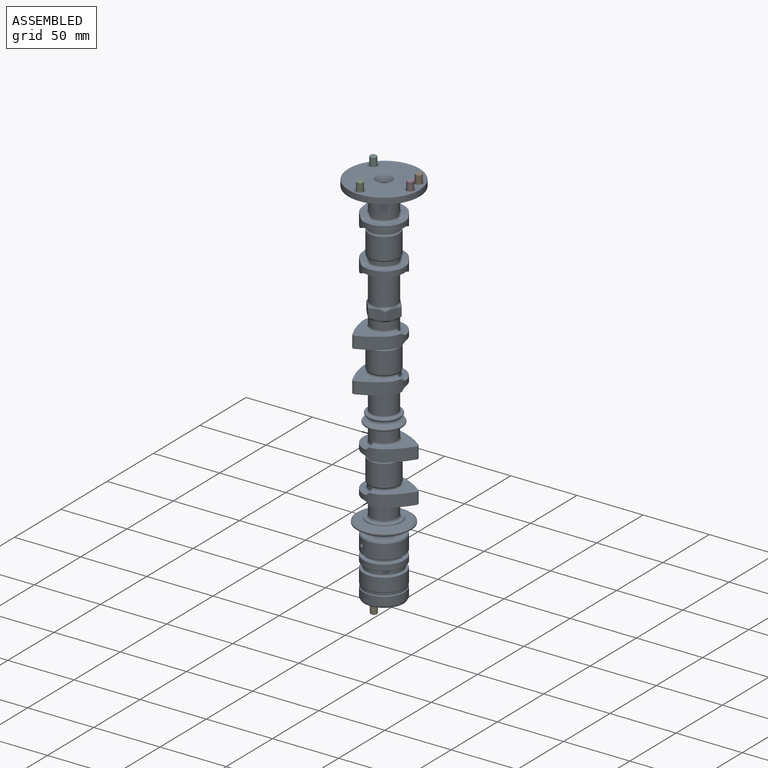
[diagram: assembled view]
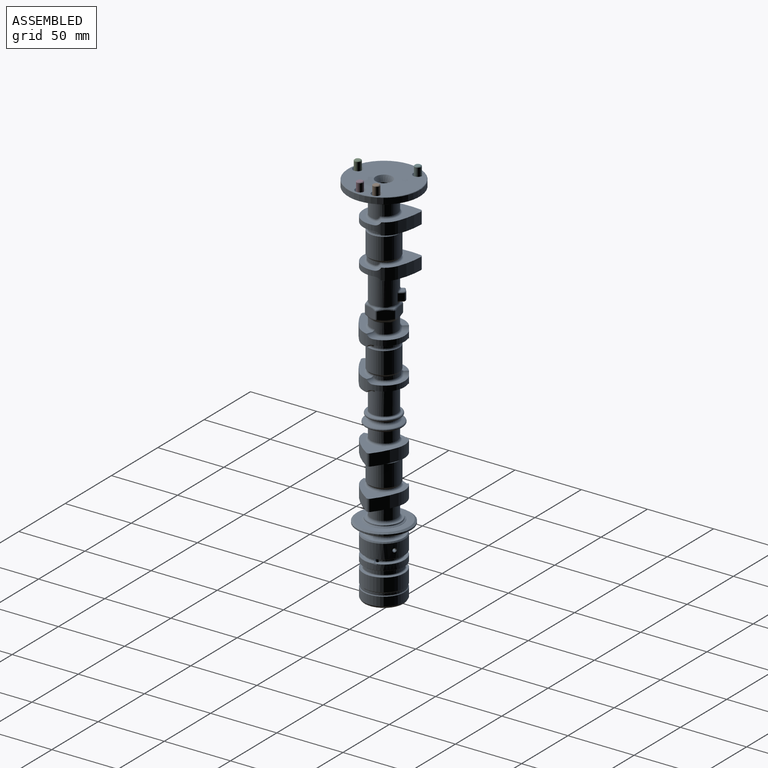
[diagram: assembled view, second angle]
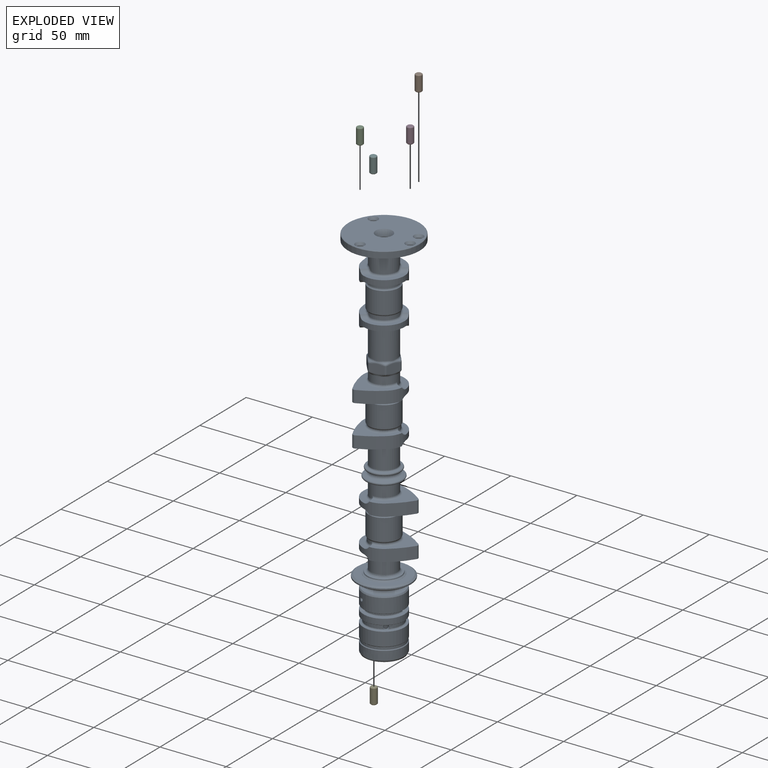
[diagram: exploded view]
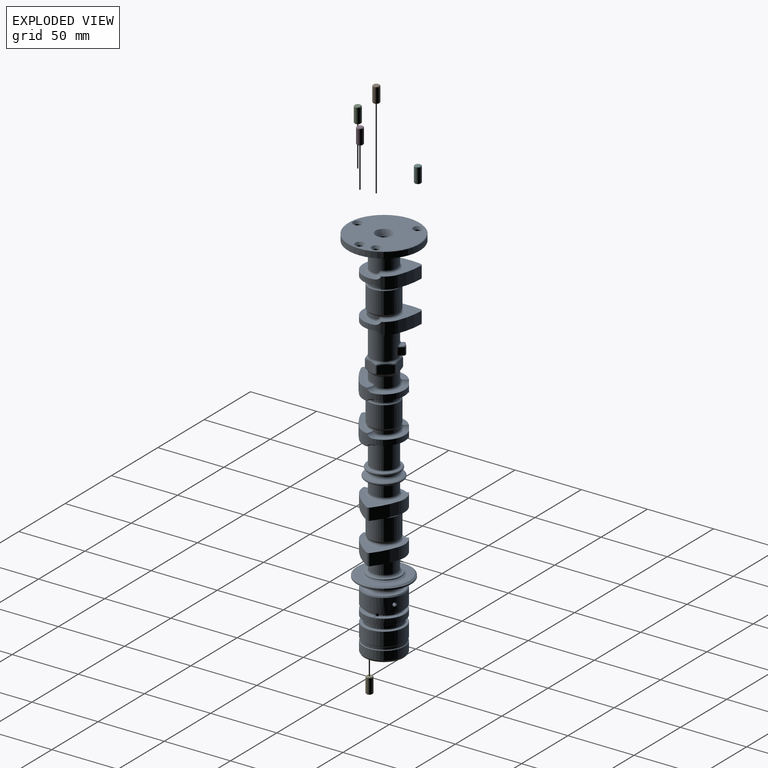
[diagram: exploded view, second angle]
ASSEMBLY  parts=6 mates=5
PART A: 391 faces, bbox 60.9x60.9x286.1 mm
  f0: cylinder r=15.5mm len=31mm, axis (0,0,-1), area 1036.7mm2, adj f18,f19,f43,f375,f378,f389,f390
  f1: cylinder r=4mm len=221.2mm, axis (0,0,-1), area 5553mm2, adj f356,f357,f387,f388
  f2: cylinder r=13.5mm len=23.38mm, axis (0,0,-1), area 103.1mm2, adj f4,f5,f384,f385
  f3: cylinder r=13.5mm len=22.71mm, axis (0,0,-1), area 98.2mm2, adj f4,f5,f384,f385
  f4: torus R=14.3mm, axis (0,0,1), area 105.5mm2, adj f2,f3,f30,f384,f385
  f5: torus R=14.3mm, axis (0,0,1), area 105.5mm2, adj f2,f3,f31,f384,f385
  f6: cylinder r=2mm len=26.05mm, axis (0,0,-1), area 311.4mm2, adj f379,f382,f384
  f7: cylinder r=15.5mm len=31mm, axis (0,0,-1), area 418.8mm2, adj f20,f21,f46,f374,f377
  f8: plane 24.2x17.84mm, normal (0,0,1), area 60.8mm2, adj f15,f20,f373,f376
  f9: plane 29.73x26.04mm, normal (0,0,1), area 92.4mm2, adj f14,f21,f373,f376
  f10: cylinder r=12.7mm len=24.39mm, axis (0,0,-1), area 61.5mm2, adj f14,f17,f373,f376
  f11: cylinder r=12.7mm len=19.43mm, axis (0,0,-1), area 39.7mm2, adj f15,f16,f373,f376
  f12: plane 24.2x17.84mm, normal (0,0,-1), area 60.8mm2, adj f16,f18,f373,f376
  f13: plane 29.73x26.04mm, normal (0,0,-1), area 92.5mm2, adj f17,f19,f373,f376
  f14: torus R=13.5mm, axis (0,0,1), area 57.2mm2, adj f9,f10,f373,f376
  f15: torus R=13.5mm, axis (0,0,1), area 37.3mm2, adj f8,f11,f373,f376
  f16: torus R=13.5mm, axis (0,0,1), area 37.3mm2, adj f11,f12,f373,f376
  f17: torus R=13.5mm, axis (0,0,1), area 57.2mm2, adj f10,f13,f373,f376
  f18: cone r=15.5mm half-angle=45deg, axis (0,0,1), area 10.3mm2, adj f0,f12,f375,f378
  f19: cone r=15.5mm half-angle=45deg, axis (0,0,1), area 15.6mm2, adj f0,f13,f375,f378
  f20: cone r=15.3mm half-angle=45deg, axis (0,0,-1), area 10.3mm2, adj f7,f8,f374,f377
  f21: cone r=15.3mm half-angle=45deg, axis (0,0,-1), area 15.6mm2, adj f7,f9,f374,f377
  f22: cylinder r=2mm len=34.45mm, axis (0,0,-1), area 417mm2, adj f350,f352,f376
  f23: cylinder r=2mm len=34.45mm, axis (0,0,-1), area 420.2mm2, adj f351,f353,f373
  f24: plane 33.08x31mm, normal (0,0,1), area 274.6mm2, adj f53,f54,f55,f56,f279,f280,f282
  f25: cylinder r=15.5mm len=31mm, axis (0,0,-1), area 607.3mm2, adj f26,f49,f50,f51
  f26: cone r=15.5mm half-angle=30deg, axis (0,0,1), area 142.7mm2, adj f25,f27,f51
  f27: plane 29.5x29.5mm, normal (0,0,-1), area 458.8mm2, adj f26,f349,f352,f353,f354,f382,f383
  f28: cylinder r=15mm len=30mm, axis (0,0,-1), area 158.4mm2, adj f44,f45,f386
  f29: cylinder r=15.5mm len=31mm, axis (0,0,-1), area 989.3mm2, adj f47,f48
  f30: plane 30.6x30.6mm, normal (0,0,1), area 93mm2, adj f4,f48
  f31: plane 30.6x30.6mm, normal (0,0,-1), area 93mm2, adj f5,f46
  f32: plane 29.84x29.84mm, normal (0,0,1), area 126.8mm2, adj f43,f60
  f33: cylinder r=11.5mm len=23mm, axis (0,0,-1), area 14.3mm2, adj f60,f61
  f34: cylinder r=12.5mm len=25mm, axis (0,0,-1), area 36.9mm2, adj f61,f63
  f35: plane 27.08x27.08mm, normal (0,0,-1), area 3.4mm2, adj f63,f65
  f36: cylinder r=20.5mm len=41mm, axis (0,0,-1), area 128.8mm2, adj f67,f68
  f37: plane 38.2x38.2mm, normal (0,0,1), area 530.5mm2, adj f64,f68
  f38: plane 38.2x38.2mm, normal (0,0,-1), area 530.5mm2, adj f65,f67
  f39: plane 27.08x27.08mm, normal (0,0,1), area 3.4mm2, adj f62,f64
  f40: cylinder r=12.5mm len=25mm, axis (0,0,-1), area 15.7mm2, adj f41,f62
  f41: plane 25x25mm, normal (0,0,1), area 38.5mm2, adj f40,f66
  f42: cylinder r=10mm len=20mm, axis (0,0,-1), area 662.3mm2, adj f66,f275,f276,f277,f278
  f43: cone r=14.92mm half-angle=30deg, axis (0,0,-1), area 110.9mm2, adj f0,f32
  f44: torus R=15.4mm, axis (0,0,1), area 53.2mm2, adj f28,f49,f386
  f45: torus R=15.4mm, axis (0,0,1), area 53.2mm2, adj f28,f47,f386
  f46: cone r=15.5mm half-angle=45deg, axis (0,0,1), area 27.4mm2, adj f7,f31
  f47: cone r=15.5mm half-angle=40.2deg, axis (0,0,1), area 25mm2, adj f29,f45
  f48: cone r=15.3mm half-angle=45deg, axis (0,0,-1), area 27.4mm2, adj f29,f30
  f49: cone r=15.33mm half-angle=40.2deg, axis (0,0,-1), area 25mm2, adj f25,f44
  f50: plane 10.89x0.99mm, normal (0,0,-1), area 2.2mm2, adj f25,f51
  f51: cylinder r=21.9mm len=10.89mm, axis (0,0,-1), area 40.7mm2, adj f25,f26,f50
  f52: plane 33.08x31mm, normal (0,0,-1), area 309.5mm2, adj f53,f54,f55,f56,f273,f274,f277
  f53: cylinder r=58.4mm len=17.19mm, axis (0,0,-1), area 176.6mm2, adj f24,f52,f54,f56
  f54: cylinder r=15.5mm len=31mm, axis (0,0,-1), area 414.2mm2, adj f24,f52,f53,f55,f57,f59,f273,f274
  f55: cylinder r=58.4mm len=14.53mm, axis (0,0,-1), area 176.6mm2, adj f24,f52,f54,f56
  f56: cylinder r=2.15mm len=9mm, axis (0,0,-1), area 29.4mm2, adj f24,f52,f53,f55
  f57: plane 23.35x10.63mm, normal (0,0,-1), area 92.7mm2, adj f54,f273,f274,f276
  f58: cylinder r=10.75mm len=18.26mm, axis (0,0,1), area 48.8mm2, adj f74,f281,f283,f284
  f59: plane 23.35x10.63mm, normal (0,0,1), area 78.6mm2, adj f54,f279,f280,f283
  f60: torus R=13.5mm, axis (0,0,1), area 241.3mm2, adj f32,f33
  f61: torus R=13.5mm, axis (0,0,1), area 155.9mm2, adj f33,f34
  f62: torus R=13.5mm, axis (0,0,1), area 127mm2, adj f39,f40
  f63: torus R=13.5mm, axis (0,0,1), area 127mm2, adj f34,f35
  f64: torus R=14mm, axis (0,0,1), area 50mm2, adj f37,f39
  f65: torus R=14mm, axis (0,0,1), area 50mm2, adj f35,f38
  f66: torus R=12mm, axis (0,0,1), area 211.7mm2, adj f41,f42
  f67: cone r=20.5mm half-angle=54.5deg, axis (0,0,1), area 214mm2, adj f36,f38
  f68: cone r=19.1mm half-angle=54.5deg, axis (0,0,-1), area 214mm2, adj f36,f37
  f69: cylinder r=11.5mm len=23mm, axis (0,0,-1), area 1192.2mm2, adj f71,f73
  f70: cylinder r=10.75mm len=18.26mm, axis (0,0,-1), area 48.8mm2, adj f72,f287,f288,f290
  f71: cone r=10.75mm half-angle=45deg, axis (0,0,-1), area 31.3mm2, adj f69,f72
  f72: torus R=12.25mm, axis (0,0,1), area 78mm2, adj f70,f71,f287,f289,f290
  f73: cone r=10.75mm half-angle=45deg, axis (0,0,1), area 31.3mm2, adj f69,f74
  f74: torus R=12.25mm, axis (0,0,-1), area 78mm2, adj f58,f73,f281,f282,f284
  f75: plane 33.08x31mm, normal (0,0,-1), area 274.6mm2, adj f76,f77,f78,f79,f285,f286,f289
  f76: cylinder r=58.4mm len=17.19mm, axis (0,0,-1), area 176.6mm2, adj f75,f77,f79,f80
  f77: cylinder r=15.5mm len=31mm, axis (0,0,-1), area 414.2mm2, adj f75,f76,f78,f80,f81,f83,f285,f286
  f78: cylinder r=58.4mm len=14.53mm, axis (0,0,-1), area 176.6mm2, adj f75,f77,f79,f80
  f79: cylinder r=2.15mm len=9mm, axis (0,0,-1), area 29.4mm2, adj f75,f76,f78,f80
  f80: plane 33.08x31mm, normal (0,0,1), area 309.5mm2, adj f76,f77,f78,f79,f291,f292,f294
  f81: plane 23.35x10.63mm, normal (0,0,-1), area 78.6mm2, adj f77,f285,f286,f288
  f82: cylinder r=10mm len=20mm, axis (0,0,1), area 530.3mm2, adj f92,f293,f294,f295,f296
  f83: plane 23.35x10.63mm, normal (0,0,1), area 92.7mm2, adj f77,f291,f292,f295
  f84: cylinder r=14mm len=28mm, axis (0,0,-1), area 1.4mm2, adj f93,f94
  f85: plane 26.14x26.14mm, normal (0,0,-1), area 84.3mm2, adj f92,f93
  f86: cone r=14mm half-angle=70.2deg, axis (0,0,-1), area 170.1mm2, adj f91,f94
  f87: cylinder r=10mm len=20mm, axis (0,0,-1), area 24.8mm2, adj f91,f97
  f88: plane 23x23mm, normal (0,0,1), area 35.3mm2, adj f95,f96
  f89: plane 23x23mm, normal (0,0,-1), area 35.3mm2, adj f96,f97
  f90: cylinder r=10mm len=20mm, axis (0,0,-1), area 1020.4mm2, adj f95,f299,f300,f301,f302
  f91: torus R=12mm, axis (0,0,1), area 161.1mm2, adj f86,f87
  f92: torus R=12mm, axis (0,0,1), area 211.7mm2, adj f82,f85
  f93: torus R=13.07mm, axis (0,0,1), area 125.4mm2, adj f84,f85
  f94: torus R=13.07mm, axis (0,0,-1), area 98.7mm2, adj f84,f86
  f95: torus R=11mm, axis (0,0,1), area 102.3mm2, adj f88,f90
  f96: torus R=11.5mm, axis (0,0,1), area 239.6mm2, adj f88,f89
  f97: torus R=11mm, axis (0,0,1), area 102.3mm2, adj f87,f89
  f98: plane 34.04x30.81mm, normal (0,0,-1), area 309.5mm2, adj f100,f101,f102,f103,f297,f298,f301
  f99: plane 34.04x30.81mm, normal (0,0,1), area 274.6mm2, adj f100,f101,f102,f103,f303,f304,f306
  f100: cylinder r=58.4mm len=16.61mm, axis (0,0,-1), area 176.6mm2, adj f98,f99,f101,f103
  f101: cylinder r=15.5mm len=31mm, axis (0,0,-1), area 414.2mm2, adj f98,f99,f100,f102,f104,f106,f297,f298
  f102: cylinder r=58.4mm len=18.56mm, axis (0,0,-1), area 176.6mm2, adj f98,f99,f101,f103
  f103: cylinder r=2.15mm len=9mm, axis (0,0,-1), area 29.4mm2, adj f98,f99,f100,f102
  f104: plane 21.57x13.31mm, normal (0,0,-1), area 92.7mm2, adj f101,f297,f298,f300
  f105: cylinder r=10.75mm len=16.94mm, axis (0,0,1), area 48.8mm2, adj f112,f305,f307,f308
  f106: plane 21.57x13.31mm, normal (0,0,1), area 78.6mm2, adj f101,f303,f304,f307
  f107: cylinder r=11.5mm len=23mm, axis (0,0,-1), area 1192.2mm2, adj f109,f111
  f108: cylinder r=10.75mm len=16.94mm, axis (0,0,-1), area 48.8mm2, adj f110,f317,f318,f320
  f109: cone r=10.75mm half-angle=45deg, axis (0,0,-1), area 31.3mm2, adj f107,f110
  f110: torus R=12.25mm, axis (0,0,1), area 78mm2, adj f108,f109,f317,f319,f320
  f111: cone r=10.75mm half-angle=45deg, axis (0,0,1), area 31.3mm2, adj f107,f112
  f112: torus R=12.25mm, axis (0,0,-1), area 78mm2, adj f105,f111,f305,f306,f308
  f113: plane 34.04x30.81mm, normal (0,0,-1), area 274.6mm2, adj f115,f116,f117,f118,f309,f310,f319
  f114: plane 34.04x30.81mm, normal (0,0,1), area 309.5mm2, adj f115,f116,f117,f118,f311,f312,f314
  f115: cylinder r=58.4mm len=16.61mm, axis (0,0,-1), area 176.6mm2, adj f113,f114,f116,f118
  f116: cylinder r=15.5mm len=31mm, axis (0,0,-1), area 414.2mm2, adj f113,f114,f115,f117,f119,f121,f309,f310
  f117: cylinder r=58.4mm len=18.56mm, axis (0,0,-1), area 176.6mm2, adj f113,f114,f116,f118
  f118: cylinder r=2.15mm len=9mm, axis (0,0,-1), area 29.4mm2, adj f113,f114,f115,f117
  f119: plane 21.57x13.31mm, normal (0,0,-1), area 78.6mm2, adj f116,f309,f310,f318
  f120: cylinder r=10mm len=20mm, axis (0,0,1), area 373.2mm2, adj f155,f156,f157,f158,f159,f160,f161,f162
  f121: plane 21.57x13.31mm, normal (0,0,1), area 92.7mm2, adj f116,f311,f312,f315
  f122: plane 7.97x6.92mm, normal (0.77,0.64,0), area 66.5mm2, adj f152,f154,f180,f182,f184,f204,f206,f208
  f123: plane 9.76x6.92mm, normal (0.94,-0.34,0), area 66.6mm2, adj f149,f154,f172,f174,f176,f196,f198,f200
  f124: plane 10.24x6.92mm, normal (0.17,-0.99,0), area 66.6mm2, adj f149,f150,f167,f168,f169,f191,f192,f193
  f125: plane 7.97x6.92mm, normal (-0.77,-0.64,0), area 66.5mm2, adj f150,f151,f173,f175,f177,f197,f199,f201
  f126: plane 9.76x6.92mm, normal (-0.94,0.34,0), area 66.5mm2, adj f151,f153,f181,f183,f185,f205,f207,f209
  f127: plane 10.24x6.92mm, normal (-0.17,0.99,0), area 66.5mm2, adj f152,f153,f188,f189,f190,f212,f213,f214
  f128: cylinder r=10mm len=21.3mm, axis (0,0,-1), area 1107.2mm2, adj f137,f138,f140,f141,f142,f143,f144,f145
  f129: plane 1.46x1.09mm, normal (0,0,1), area 0.3mm2, adj f230,f239,f240
  f130: plane 5.57x3.95mm, normal (0,0,-1), area 9.2mm2, adj f132,f224,f225,f226,f227
  f131: plane 5x3.07mm, normal (-0.64,0.77,0), area 20mm2, adj f132,f216,f219,f224
  f132: plane 7.09x3.07mm, normal (-0.77,-0.64,0), area 26.2mm2, adj f130,f131,f135,f215,f219,f221,f224,f227
  f133: plane 6.44x3.24mm, normal (-0.64,0.77,0), area 22.4mm2, adj f215,f218,f234,f235,f240,f241
  f134: plane 5x2.31mm, normal (0.77,0.64,0), area 15.1mm2, adj f216,f217,f222,f226
  f135: plane 5.57x3.95mm, normal (0,0,1), area 9.2mm2, adj f132,f219,f220,f221,f222
  f136: plane 1.46x1.09mm, normal (0,0,-1), area 0.3mm2, adj f229,f233,f234
  f137: bspline ~9.52x4.7mm, area 8.8mm2, adj f128,f138,f139,f207,f230
  f138: torus R=11.5mm, axis (0,0,-1), area 3.5mm2, adj f128,f137,f140,f201,f205
  f139: torus R=11.5mm, axis (0,0,-1), area 3.5mm2, adj f137,f141,f209,f213,f227,f230
  f140: bspline ~8.26x7.24mm, area 8.8mm2, adj f128,f138,f142,f199
  f141: bspline ~9.99x3.11mm, area 9mm2, adj f128,f139,f143,f214,f227
  f142: torus R=11.5mm, axis (0,0,-1), area 3.5mm2, adj f128,f140,f144,f193,f197
  f143: torus R=11.5mm, axis (0,0,-1), area 3.5mm2, adj f128,f141,f145,f208,f212
  f144: bspline ~9.99x3.11mm, area 8.8mm2, adj f128,f142,f146,f191
  f145: bspline ~8.26x7.24mm, area 8.8mm2, adj f128,f143,f147,f206
  f146: torus R=11.5mm, axis (0,0,-1), area 3.5mm2, adj f128,f144,f148,f192,f196
  f147: torus R=11.5mm, axis (0,0,-1), area 3.5mm2, adj f128,f145,f148,f200,f204
  f148: bspline ~9.52x4.7mm, area 8.8mm2, adj f128,f146,f147,f198
  f149: cylinder r=1.5mm len=5.42mm, axis (0,0,-1), area 8.5mm2, adj f123,f124,f170,f194
  f150: cylinder r=1.5mm len=5.42mm, axis (0,0,1), area 8.5mm2, adj f124,f125,f171,f195
  f151: cylinder r=1.5mm len=5.42mm, axis (0,0,-1), area 8.5mm2, adj f125,f126,f179,f203
  f152: cylinder r=1.5mm len=5.42mm, axis (0,0,1), area 8.5mm2, adj f122,f127,f186,f210
  f153: cylinder r=1.5mm len=5.42mm, axis (0,0,-1), area 8.5mm2, adj f126,f127,f187,f211
  f154: cylinder r=1.5mm len=5.42mm, axis (0,0,-1), area 8.5mm2, adj f122,f123,f178,f202
  f155: bspline ~9.52x4.67mm, area 8.8mm2, adj f120,f156,f157,f174
  f156: torus R=11.5mm, axis (0,0,-1), area 3.5mm2, adj f120,f155,f158,f176,f180
  f157: torus R=11.5mm, axis (0,0,-1), area 3.5mm2, adj f120,f155,f159,f168,f172
  f158: bspline ~8.24x7.26mm, area 8.8mm2, adj f120,f156,f160,f182
  f159: bspline ~9.99x3.15mm, area 8.8mm2, adj f120,f157,f161,f167
  f160: torus R=11.5mm, axis (0,0,-1), area 3.5mm2, adj f120,f158,f162,f184,f188
  f161: torus R=11.5mm, axis (0,0,-1), area 3.5mm2, adj f120,f159,f163,f169,f173
  f162: bspline ~9.99x3.15mm, area 8.8mm2, adj f120,f160,f164,f190
  f163: bspline ~8.24x7.26mm, area 8.8mm2, adj f120,f161,f165,f175
  f164: torus R=11.5mm, axis (0,0,-1), area 3.5mm2, adj f120,f162,f166,f185,f189
  f165: torus R=11.5mm, axis (0,0,-1), area 3.5mm2, adj f120,f163,f166,f177,f181
  f166: bspline ~9.52x4.67mm, area 8.8mm2, adj f120,f164,f165,f183
  f167: bspline ~8.98x2.3mm, area 9.4mm2, adj f124,f159,f168,f169
  f168: bspline ~3.03x1.8mm, area 2mm2, adj f124,f157,f167,f170
  f169: bspline ~3.47x1.83mm, area 2mm2, adj f124,f161,f167,f171
  f170: sphere r=1.5mm, area 1.7mm2, adj f149,f168,f172
  f171: sphere r=1.5mm, area 1.6mm2, adj f150,f169,f173
  f172: bspline ~3.27x2.39mm, area 2mm2, adj f123,f157,f170,f174
  f173: bspline ~2.79x2.36mm, area 2mm2, adj f125,f161,f171,f175
  f174: bspline ~8.9x3.94mm, area 9.4mm2, adj f123,f155,f172,f176
  f175: bspline ~7.57x6.52mm, area 9.4mm2, adj f125,f163,f173,f177
  f176: bspline ~3.54x1.83mm, area 2mm2, adj f123,f156,f174,f178
  f177: bspline ~2.7x1.86mm, area 2mm2, adj f125,f165,f175,f179
  f178: sphere r=1.5mm, area 1.6mm2, adj f154,f176,f180
  f179: sphere r=1.5mm, area 1.7mm2, adj f151,f177,f181
  f180: bspline ~3.5x2.43mm, area 2mm2, adj f122,f156,f178,f182
  f181: bspline ~3.21x1.78mm, area 2mm2, adj f126,f165,f179,f183
  f182: bspline ~7.57x6.52mm, area 9.4mm2, adj f122,f158,f180,f184
  f183: bspline ~8.9x3.94mm, area 9.4mm2, adj f126,f166,f181,f185
  f184: bspline ~3.04x2.55mm, area 2mm2, adj f122,f160,f182,f186
  f185: bspline ~2.89x2.26mm, area 2mm2, adj f126,f164,f183,f187
  f186: sphere r=1.5mm, area 1.7mm2, adj f152,f184,f188
  f187: sphere r=1.5mm, area 1.7mm2, adj f153,f185,f189
  f188: bspline ~3.68x1.86mm, area 2mm2, adj f127,f160,f186,f190
  f189: bspline ~2.92x1.78mm, area 2mm2, adj f127,f164,f187,f190
  f190: bspline ~9.18x2.39mm, area 9.4mm2, adj f127,f162,f188,f189
  f191: bspline ~9.14x2.37mm, area 9.4mm2, adj f124,f144,f192,f193
  f192: bspline ~3.03x1.8mm, area 2mm2, adj f124,f146,f191,f194
  f193: bspline ~3.47x1.83mm, area 2mm2, adj f124,f142,f191,f195
  f194: sphere r=1.5mm, area 1.7mm2, adj f149,f192,f196
  f195: sphere r=1.5mm, area 1.7mm2, adj f150,f193,f197
  f196: bspline ~3.27x2.39mm, area 2mm2, adj f123,f146,f194,f198
  f197: bspline ~2.79x2.36mm, area 2mm2, adj f125,f142,f195,f199
  f198: bspline ~8.91x3.86mm, area 9.4mm2, adj f123,f148,f196,f200
  f199: bspline ~7.54x6.48mm, area 9.4mm2, adj f125,f140,f197,f201
  f200: bspline ~3.54x1.83mm, area 2mm2, adj f123,f147,f198,f202
  f201: bspline ~3.52x2.44mm, area 2mm2, adj f125,f138,f199,f203
  f202: sphere r=1.5mm, area 1.7mm2, adj f154,f200,f204
  f203: sphere r=1.5mm, area 1.6mm2, adj f151,f201,f205
  f204: bspline ~3.5x2.43mm, area 2mm2, adj f122,f147,f202,f206
  f205: bspline ~3.21x1.78mm, area 2mm2, adj f126,f138,f203,f207
  f206: bspline ~7.51x6.46mm, area 9.4mm2, adj f122,f145,f204,f208
  f207: bspline ~8.91x3.86mm, area 9.4mm2, adj f126,f137,f205,f209
  f208: bspline ~3.04x2.55mm, area 2mm2, adj f122,f143,f206,f210
  f209: bspline ~2.89x2.26mm, area 2mm2, adj f126,f139,f207,f211
  f210: sphere r=1.5mm, area 1.6mm2, adj f152,f208,f212
  f211: sphere r=1.5mm, area 1.7mm2, adj f153,f209,f213
  f212: bspline ~2.82x1.73mm, area 2mm2, adj f127,f143,f210,f214
  f213: bspline ~2.92x1.78mm, area 2mm2, adj f127,f139,f211,f214
  f214: bspline ~9.14x2.37mm, area 9.4mm2, adj f127,f141,f212,f213
  f215: cylinder r=2mm len=5.16mm, axis (0,0,-1), area 15.8mm2, adj f132,f133,f232,f233,f238,f239
  f216: cylinder r=2mm len=5mm, axis (0,0,-1), area 15.7mm2, adj f131,f134,f220,f225
  f217: cylinder r=1mm len=5mm, axis (0,0,-1), area 4.4mm2, adj f128,f134,f223,f228
  f218: cylinder r=1mm len=9mm, axis (0,0,-1), area 5.9mm2, adj f128,f133,f236,f242
  f219: cylinder r=1mm len=3.71mm, axis (0.77,0.64,0), area 6.3mm2, adj f131,f132,f135,f220
  f220: torus R=1mm, axis (0,0,1), area 4mm2, adj f135,f216,f219,f222
  f221: torus R=11mm, axis (0,0,1), area 8.1mm2, adj f128,f132,f135,f223,f231
  f222: cylinder r=1mm len=2.95mm, axis (0.64,-0.77,0), area 3.7mm2, adj f134,f135,f220,f223
  f223: bspline ~2.47x2.38mm, area 3mm2, adj f128,f217,f221,f222
  f224: cylinder r=1mm len=3.71mm, axis (-0.77,-0.64,0), area 6.3mm2, adj f130,f131,f132,f225
  f225: torus R=1mm, axis (0,0,1), area 4mm2, adj f130,f216,f224,f226
  f226: cylinder r=1mm len=2.95mm, axis (-0.64,0.77,0), area 3.7mm2, adj f130,f134,f225,f228
  f227: torus R=11mm, axis (0,0,1), area 8.1mm2, adj f130,f132,f139,f141,f228,f237
  f228: bspline ~2.7x2.36mm, area 3mm2, adj f128,f217,f226,f227
  f229: torus R=9mm, axis (0,0,1), area 7.3mm2, adj f128,f136,f231,f232,f235,f236
  f230: torus R=9mm, axis (0,0,1), area 8mm2, adj f129,f137,f139,f237,f238,f241,f242
  f231: bspline ~2.21x2.07mm, area 2.1mm2, adj f132,f221,f229,f232
  f232: bspline ~1.88x1.12mm, area 1.3mm2, adj f215,f229,f231,f233
  f233: torus R=1mm, axis (0,0,1), area 2.5mm2, adj f136,f215,f232,f234
  f234: cylinder r=1mm len=1.38mm, axis (0.77,0.64,0), area 1.5mm2, adj f133,f136,f233,f235
  f235: bspline ~3.4x3.08mm, area 3.9mm2, adj f133,f229,f234,f236
  f236: bspline ~1.57x1.5mm, area 0.4mm2, adj f218,f229,f235
  f237: bspline ~2.21x2.07mm, area 2.1mm2, adj f132,f227,f230,f238
  f238: bspline ~1.56x1.12mm, area 1.3mm2, adj f215,f230,f237,f239
  f239: torus R=1mm, axis (0,0,1), area 2.5mm2, adj f129,f215,f238,f240
  f240: cylinder r=1mm len=1.38mm, axis (-0.77,-0.64,0), area 1.5mm2, adj f129,f133,f239,f241
  f241: bspline ~3.55x3.26mm, area 3.9mm2, adj f133,f230,f240,f242
  f242: bspline ~1.57x1.5mm, area 0.4mm2, adj f218,f230,f241
  f243: plane 30.55x29.95mm, normal (0,0,-1), area 293.3mm2, adj f245,f246,f247,f248,f321,f322,f331
  f244: plane 30.55x29.95mm, normal (0,0,1), area 260.8mm2, adj f245,f246,f247,f248,f323,f324,f326
  f245: cylinder r=58.4mm len=19.52mm, axis (0,0,-1), area 176.6mm2, adj f243,f244,f246,f248
  f246: cylinder r=15.5mm len=30.72mm, axis (0,0,-1), area 389.3mm2, adj f243,f244,f245,f247,f249,f251,f321,f322
  f247: cylinder r=58.4mm len=19.11mm, axis (0,0,-1), area 176.6mm2, adj f243,f244,f246,f248
  f248: cylinder r=2.15mm len=9mm, axis (0,0,-1), area 29.4mm2, adj f243,f244,f245,f247
  f249: plane 21.28x18.64mm, normal (0,0,-1), area 107.5mm2, adj f246,f321,f322,f330
  f250: cylinder r=10.75mm len=16.28mm, axis (0,0,1), area 55.4mm2, adj f257,f325,f327,f328
  f251: plane 21.28x18.64mm, normal (0,0,1), area 91.4mm2, adj f246,f323,f324,f327
  f252: cylinder r=11.5mm len=23mm, axis (0,0,-1), area 1192.2mm2, adj f254,f256
  f253: cylinder r=10.75mm len=16.28mm, axis (0,0,-1), area 55.4mm2, adj f255,f341,f342,f344
  f254: cone r=10.75mm half-angle=45deg, axis (0,0,-1), area 31.3mm2, adj f252,f255
  f255: torus R=12.25mm, axis (0,0,1), area 78.2mm2, adj f253,f254,f341,f343,f344
  f256: cone r=10.75mm half-angle=45deg, axis (0,0,1), area 31.3mm2, adj f252,f257
  f257: torus R=12.25mm, axis (0,0,-1), area 78.2mm2, adj f250,f256,f325,f326,f328
  f258: plane 30.55x29.95mm, normal (0,0,-1), area 260.8mm2, adj f260,f261,f262,f263,f333,f334,f343
  f259: plane 30.55x29.95mm, normal (0,0,1), area 293.3mm2, adj f260,f261,f262,f263,f335,f336,f338
  f260: cylinder r=58.4mm len=19.52mm, axis (0,0,-1), area 176.6mm2, adj f258,f259,f261,f263
  f261: cylinder r=15.5mm len=30.72mm, axis (0,0,-1), area 389.3mm2, adj f258,f259,f260,f262,f264,f266,f333,f334
  f262: cylinder r=58.4mm len=19.11mm, axis (0,0,-1), area 176.6mm2, adj f258,f259,f261,f263
  f263: cylinder r=2.15mm len=9mm, axis (0,0,-1), area 29.4mm2, adj f258,f259,f260,f262
  f264: plane 21.28x18.64mm, normal (0,0,-1), area 91.4mm2, adj f261,f333,f334,f342
  f265: cylinder r=10mm len=20mm, axis (0,0,1), area 555.1mm2, adj f271,f337,f338,f339,f340
  f266: plane 21.28x18.64mm, normal (0,0,1), area 107.5mm2, adj f261,f335,f336,f339
  f267: plane 52x52mm, normal (0,0,-1), area 1027.3mm2, adj f268,f271,f362,f363,f364,f365
  f268: torus R=26mm, axis (0,0,1), area 169.8mm2, adj f267,f269
  f269: cylinder r=27mm len=54mm, axis (0,0,1), area 768.2mm2, adj f268,f272
  f270: plane 53.4x53.4mm, normal (0,0,1), area 1951.7mm2, adj f272,f366,f367,f368,f369,f372
  f271: torus R=18mm, axis (0,0,1), area 1019.1mm2, adj f265,f267
  f272: cone r=26.7mm half-angle=45deg, axis (0,0,-1), area 71.6mm2, adj f269,f270
  f273: cylinder r=5mm len=7mm, axis (0.17,-0.99,0), area 24.5mm2, adj f52,f54,f57,f275,f277
  f274: cylinder r=5mm len=6.5mm, axis (-0.64,0.77,0), area 21.9mm2, adj f52,f54,f57,f277,f278
  f275: bspline ~6.54x4.76mm, area 10.5mm2, adj f42,f273,f276,f277
  f276: torus R=11.5mm, axis (0,0,1), area 38.3mm2, adj f42,f57,f275,f278
  f277: torus R=11.5mm, axis (0,0,1), area 99mm2, adj f42,f52,f273,f274,f275,f278
  f278: bspline ~5x4.5mm, area 11mm2, adj f42,f274,f276,f277
  f279: cylinder r=5mm len=5.91mm, axis (0.64,-0.77,0), area 17.8mm2, adj f24,f54,f59,f282,f284
  f280: cylinder r=5mm len=6.06mm, axis (-0.17,0.99,0), area 20mm2, adj f24,f54,f59,f281,f282
  f281: bspline ~6.59x4.59mm, area 10.3mm2, adj f58,f74,f280,f282,f283
  f282: torus R=12.25mm, axis (0,0,1), area 102.9mm2, adj f24,f74,f279,f280,f281,f284
  f283: torus R=12.25mm, axis (0,0,1), area 43mm2, adj f58,f59,f281,f284
  f284: bspline ~5.51x4.88mm, area 10.7mm2, adj f58,f74,f279,f282,f283
  f285: cylinder r=5mm len=5.91mm, axis (-0.64,0.77,0), area 17.8mm2, adj f75,f77,f81,f289,f290
  f286: cylinder r=5mm len=6.06mm, axis (0.17,-0.99,0), area 20mm2, adj f75,f77,f81,f287,f289
  f287: bspline ~6.59x4.59mm, area 10.3mm2, adj f70,f72,f286,f288,f289
  f288: torus R=12.25mm, axis (0,0,1), area 43mm2, adj f70,f81,f287,f290
  f289: torus R=12.25mm, axis (0,0,1), area 102.9mm2, adj f72,f75,f285,f286,f287,f290
  f290: bspline ~5.51x4.88mm, area 10.7mm2, adj f70,f72,f285,f288,f289
  f291: cylinder r=5mm len=7mm, axis (-0.17,0.99,0), area 24.5mm2, adj f77,f80,f83,f293,f294
  f292: cylinder r=5mm len=6.5mm, axis (0.64,-0.77,0), area 21.9mm2, adj f77,f80,f83,f294,f296
  f293: bspline ~6.54x4.76mm, area 10.5mm2, adj f82,f291,f294,f295
  f294: torus R=11.5mm, axis (0,0,1), area 99mm2, adj f80,f82,f291,f292,f293,f296
  f295: torus R=11.5mm, axis (0,0,1), area 38.3mm2, adj f82,f83,f293,f296
  f296: bspline ~5x4.5mm, area 11mm2, adj f82,f292,f294,f295
  f297: cylinder r=5mm len=6.5mm, axis (-0.64,0.77,0), area 21.9mm2, adj f98,f101,f104,f299,f301
  f298: cylinder r=5mm len=7.46mm, axis (0.94,-0.34,0), area 24.5mm2, adj f98,f101,f104,f301,f302
  f299: bspline ~5.31x4.39mm, area 11mm2, adj f90,f297,f300,f301
  f300: torus R=11.5mm, axis (0,0,1), area 38.3mm2, adj f90,f104,f299,f302
  f301: torus R=11.5mm, axis (0,0,1), area 99mm2, adj f90,f98,f297,f298,f299,f302
  f302: bspline ~6.73x4.76mm, area 10.5mm2, adj f90,f298,f300,f301
  f303: cylinder r=5mm len=6.56mm, axis (-0.94,0.34,0), area 20mm2, adj f99,f101,f106,f306,f308
  f304: cylinder r=5mm len=5.91mm, axis (0.64,-0.77,0), area 17.8mm2, adj f99,f101,f106,f305,f306
  f305: bspline ~5.87x4.41mm, area 10.7mm2, adj f105,f112,f304,f306,f307
  f306: torus R=12.25mm, axis (0,0,1), area 102.9mm2, adj f99,f112,f303,f304,f305,f308
  f307: torus R=12.25mm, axis (0,0,1), area 43mm2, adj f105,f106,f305,f308
  f308: bspline ~6.74x4.59mm, area 10.3mm2, adj f105,f112,f303,f306,f307
  f309: cylinder r=5mm len=5.91mm, axis (-0.64,0.77,0), area 17.8mm2, adj f113,f116,f119,f317,f319
  f310: cylinder r=5mm len=6.56mm, axis (0.94,-0.34,0), area 20mm2, adj f113,f116,f119,f319,f320
  f311: cylinder r=5mm len=7.46mm, axis (-0.94,0.34,0), area 24.5mm2, adj f114,f116,f121,f314,f316
  f312: cylinder r=5mm len=6.5mm, axis (0.64,-0.77,0), area 21.9mm2, adj f114,f116,f121,f313,f314
  f313: bspline ~5.31x4.39mm, area 11mm2, adj f120,f312,f314,f315
  f314: torus R=11.5mm, axis (0,0,1), area 99mm2, adj f114,f120,f311,f312,f313,f316
  f315: torus R=11.5mm, axis (0,0,1), area 38.3mm2, adj f120,f121,f313,f316
  f316: bspline ~6.73x4.76mm, area 10.5mm2, adj f120,f311,f314,f315
  f317: bspline ~5.03x4.39mm, area 10.7mm2, adj f108,f110,f309,f318,f319
  f318: torus R=12.25mm, axis (0,0,1), area 43mm2, adj f108,f119,f317,f320
  f319: torus R=12.25mm, axis (0,0,1), area 102.9mm2, adj f110,f113,f309,f310,f317,f320
  f320: bspline ~6.74x4.59mm, area 10.3mm2, adj f108,f110,f310,f318,f319
  f321: cylinder r=5mm len=7.67mm, axis (0.77,0.64,0), area 24.5mm2, adj f243,f246,f249,f329,f331
  f322: cylinder r=5mm len=7.67mm, axis (-0.77,-0.64,0), area 24.5mm2, adj f243,f246,f249,f331,f332
  f323: cylinder r=5mm len=6.93mm, axis (0.77,0.64,0), area 20mm2, adj f244,f246,f251,f326,f328
  f324: cylinder r=5mm len=6.93mm, axis (-0.77,-0.64,0), area 20mm2, adj f244,f246,f251,f325,f326
  f325: bspline ~6.43x4.59mm, area 10.3mm2, adj f250,f257,f324,f326,f327
  f326: torus R=12.25mm, axis (0,0,1), area 96.2mm2, adj f244,f257,f323,f324,f325,f328
  f327: torus R=12.25mm, axis (0,0,1), area 49.5mm2, adj f250,f251,f325,f328
  f328: bspline ~6.26x4.59mm, area 10.3mm2, adj f250,f257,f323,f326,f327
  f329: bspline ~6.48x4.76mm, area 10.5mm2, adj f128,f321,f330,f331
  f330: torus R=11.5mm, axis (0,0,1), area 43.7mm2, adj f128,f249,f329,f332
  f331: torus R=11.5mm, axis (0,0,1), area 93.1mm2, adj f128,f243,f321,f322,f329,f332
  f332: bspline ~6.24x4.76mm, area 10.5mm2, adj f128,f322,f330,f331
  f333: cylinder r=5mm len=6.93mm, axis (0.77,0.64,0), area 20mm2, adj f258,f261,f264,f341,f343
  f334: cylinder r=5mm len=6.93mm, axis (-0.77,-0.64,0), area 20mm2, adj f258,f261,f264,f343,f344
  f335: cylinder r=5mm len=7.67mm, axis (0.77,0.64,0), area 24.5mm2, adj f259,f261,f266,f338,f340
  f336: cylinder r=5mm len=7.67mm, axis (-0.77,-0.64,0), area 24.5mm2, adj f259,f261,f266,f337,f338
  f337: bspline ~6.48x4.76mm, area 10.5mm2, adj f265,f336,f338,f339
  f338: torus R=11.5mm, axis (0,0,1), area 93.1mm2, adj f259,f265,f335,f336,f337,f340
  f339: torus R=11.5mm, axis (0,0,1), area 43.7mm2, adj f265,f266,f337,f340
  f340: bspline ~6.24x4.76mm, area 10.5mm2, adj f265,f335,f338,f339
  f341: bspline ~6.43x4.59mm, area 10.3mm2, adj f253,f255,f333,f342,f343
  f342: torus R=12.25mm, axis (0,0,1), area 49.5mm2, adj f253,f264,f341,f344
  f343: torus R=12.25mm, axis (0,0,1), area 96.2mm2, adj f255,f258,f333,f334,f341,f344
  f344: bspline ~6.26x4.59mm, area 10.3mm2, adj f253,f255,f334,f342,f343
  f345: cone r=0mm half-angle=59deg, axis (0,0,-1), area 2.7mm2, adj f346,f348
  f346: cylinder r=2.5mm len=6.5mm, axis (0,0,-1), area 102.1mm2, adj f345,f349
  f347: cone r=0mm half-angle=59deg, axis (0,0,-1), area 20.2mm2, adj f348
  f348: cylinder r=2.35mm len=4.7mm, axis (0,0,-1), area 43mm2, adj f345,f347
  f349: cone r=2.5mm half-angle=45deg, axis (0,0,-1), area 12.2mm2, adj f27,f346
  f350: cone r=0mm half-angle=59deg, axis (0,0,-1), area 14.7mm2, adj f22
  f351: cone r=0mm half-angle=59deg, axis (0,0,-1), area 14.7mm2, adj f23
  f352: cone r=2mm half-angle=45deg, axis (0,0,-1), area 4.7mm2, adj f22,f27
  f353: cone r=2mm half-angle=45deg, axis (0,0,-1), area 4.7mm2, adj f23,f27
  f354: cylinder r=6.5mm len=13mm, axis (0,0,-1), area 20.4mm2, adj f27,f355
  f355: plane 13x13mm, normal (0,0,-1), area 30.3mm2, adj f354,f361
  f356: cone r=0mm half-angle=59deg, axis (0,0,-1), area 58.6mm2, adj f1
  f357: cone r=0mm half-angle=59deg, axis (0,0,-1), area 33mm2, adj f1,f358
  f358: cylinder r=5mm len=22.82mm, axis (0,0,-1), area 716.9mm2, adj f357,f359
  f359: cone r=0mm half-angle=59deg, axis (0,0,-1), area 11.3mm2, adj f358,f360
  f360: cylinder r=5.3mm len=10.6mm, axis (0,0,-1), area 92.9mm2, adj f359,f361
  f361: cone r=5.3mm half-angle=30deg, axis (0,0,-1), area 28.4mm2, adj f355,f360
  f362: cylinder r=2.5mm len=5mm, axis (0,0,1), area 48.7mm2, adj f267,f369
  f363: cylinder r=2.5mm len=5mm, axis (0,0,1), area 48.7mm2, adj f267,f367
  f364: cylinder r=2.5mm len=5mm, axis (0,0,1), area 48.7mm2, adj f267,f368
  f365: cylinder r=2.5mm len=5mm, axis (0,0,1), area 48.7mm2, adj f267,f366
  f366: cone r=2.5mm half-angle=30deg, axis (0,0,1), area 42mm2, adj f270,f365
  f367: cone r=2.5mm half-angle=30deg, axis (0,0,1), area 42mm2, adj f270,f363
  f368: cone r=2.5mm half-angle=30deg, axis (0,0,1), area 42mm2, adj f270,f364
  f369: cone r=2.5mm half-angle=30deg, axis (0,0,1), area 42mm2, adj f270,f362
  f370: cone r=0mm half-angle=59deg, axis (0,0,1), area 57.2mm2, adj f371
  f371: cylinder r=3.95mm len=19.2mm, axis (0,0,1), area 476.5mm2, adj f370,f372
  f372: cone r=3.95mm half-angle=30deg, axis (0,0,1), area 152.7mm2, adj f270,f371
  f373: cylinder r=2mm len=6.07mm, axis (-0.97,-0.25,0), area 33.4mm2, adj f8,f9,f10,f11,f12,f13,f14,f15
  f374: bspline ~2.85x0.89mm, area 0.8mm2, adj f7,f20,f21,f373
  f375: bspline ~2.85x0.89mm, area 0.8mm2, adj f0,f18,f19,f373
  f376: cylinder r=2mm len=6.58mm, axis (0.65,0.76,0), area 32.6mm2, adj f8,f9,f10,f11,f12,f13,f14,f15
  f377: bspline ~2.25x1.96mm, area 0.8mm2, adj f7,f20,f21,f376
  f378: bspline ~2.25x1.96mm, area 0.8mm2, adj f0,f18,f19,f376
  f379: cone r=0mm half-angle=59deg, axis (0,0,-1), area 14.7mm2, adj f6
  f380: cone r=0mm half-angle=59deg, axis (0,0,-1), area 14.7mm2, adj f381
  f381: cylinder r=2mm len=26.05mm, axis (0,0,-1), area 310mm2, adj f380,f383,f385,f386
  f382: cone r=2mm half-angle=45deg, axis (0,0,-1), area 4.7mm2, adj f6,f27
  f383: cone r=2mm half-angle=45deg, axis (0,0,-1), area 4.7mm2, adj f27,f381
  f384: cylinder r=2mm len=5.26mm, axis (-0.65,0.76,0), area 26.9mm2, adj f2,f3,f4,f5,f6
  f385: cylinder r=2mm len=5.25mm, axis (0.59,-0.8,0), area 28.8mm2, adj f2,f3,f4,f5,f381
  f386: cylinder r=1mm len=3.62mm, axis (0.59,-0.8,0), area 18.8mm2, adj f28,f44,f45,f381
  f387: cylinder r=1mm len=10.53mm, axis (-0.5,-0.87,0), area 69.1mm2, adj f1,f390
  f388: cylinder r=1mm len=10.53mm, axis (-0.5,-0.87,0), area 69.1mm2, adj f1,f389
  f389: bspline ~3x2.68mm, area 5.7mm2, adj f0,f388
  f390: bspline ~3x2.68mm, area 5.7mm2, adj f0,f387
PART B: 5 faces, bbox 5x5x12 mm
  f0: cylinder r=2.5mm len=11mm, axis (0,0,-1), area 172.8mm2, adj f3,f4
  f1: plane 4x4mm, normal (0,0,1), area 12.6mm2, adj f4
  f2: plane 4x4mm, normal (0,0,-1), area 12.6mm2, adj f3
  f3: cone r=2.5mm half-angle=45deg, axis (0,0,1), area 10mm2, adj f0,f2
  f4: cone r=2mm half-angle=45deg, axis (0,0,-1), area 10mm2, adj f0,f1
PART C: same geometry as B
PART D: same geometry as B
PART E: same geometry as B
PART F: same geometry as B
PLACE A t=(27.89,80.57,-5.89)mm
PLACE B rot(axis=(1,0,0),180deg) t=(48.22,88.99,286.55)mm
PLACE C rot(axis=(1,0,0),180deg) t=(25.02,58.76,286.55)mm
PLACE D rot(axis=(1,0,0),180deg) t=(49.7,77.7,286.55)mm
PLACE E rot(axis=(1,0,0),180deg) t=(27.89,69.57,-0.39)mm
PLACE F rot(axis=(1,0,0),180deg) t=(10.44,93.96,286.55)mm
MATE fastened B.f0 <-> A.f362  axis (0,0,-1) through (48.22,88.99,274.55)mm
MATE fastened E.f0 <-> A.f345  axis (0,0,1) through (27.89,69.57,-0.39)mm
MATE fastened D.f0 <-> A.f364  axis (0,0,-1) through (49.7,77.7,274.55)mm
MATE fastened C.f0 <-> A.f365  axis (0,0,-1) through (25.02,58.76,274.55)mm
MATE fastened F.f0 <-> A.f363  axis (0,0,-1) through (10.44,93.96,274.55)mm
